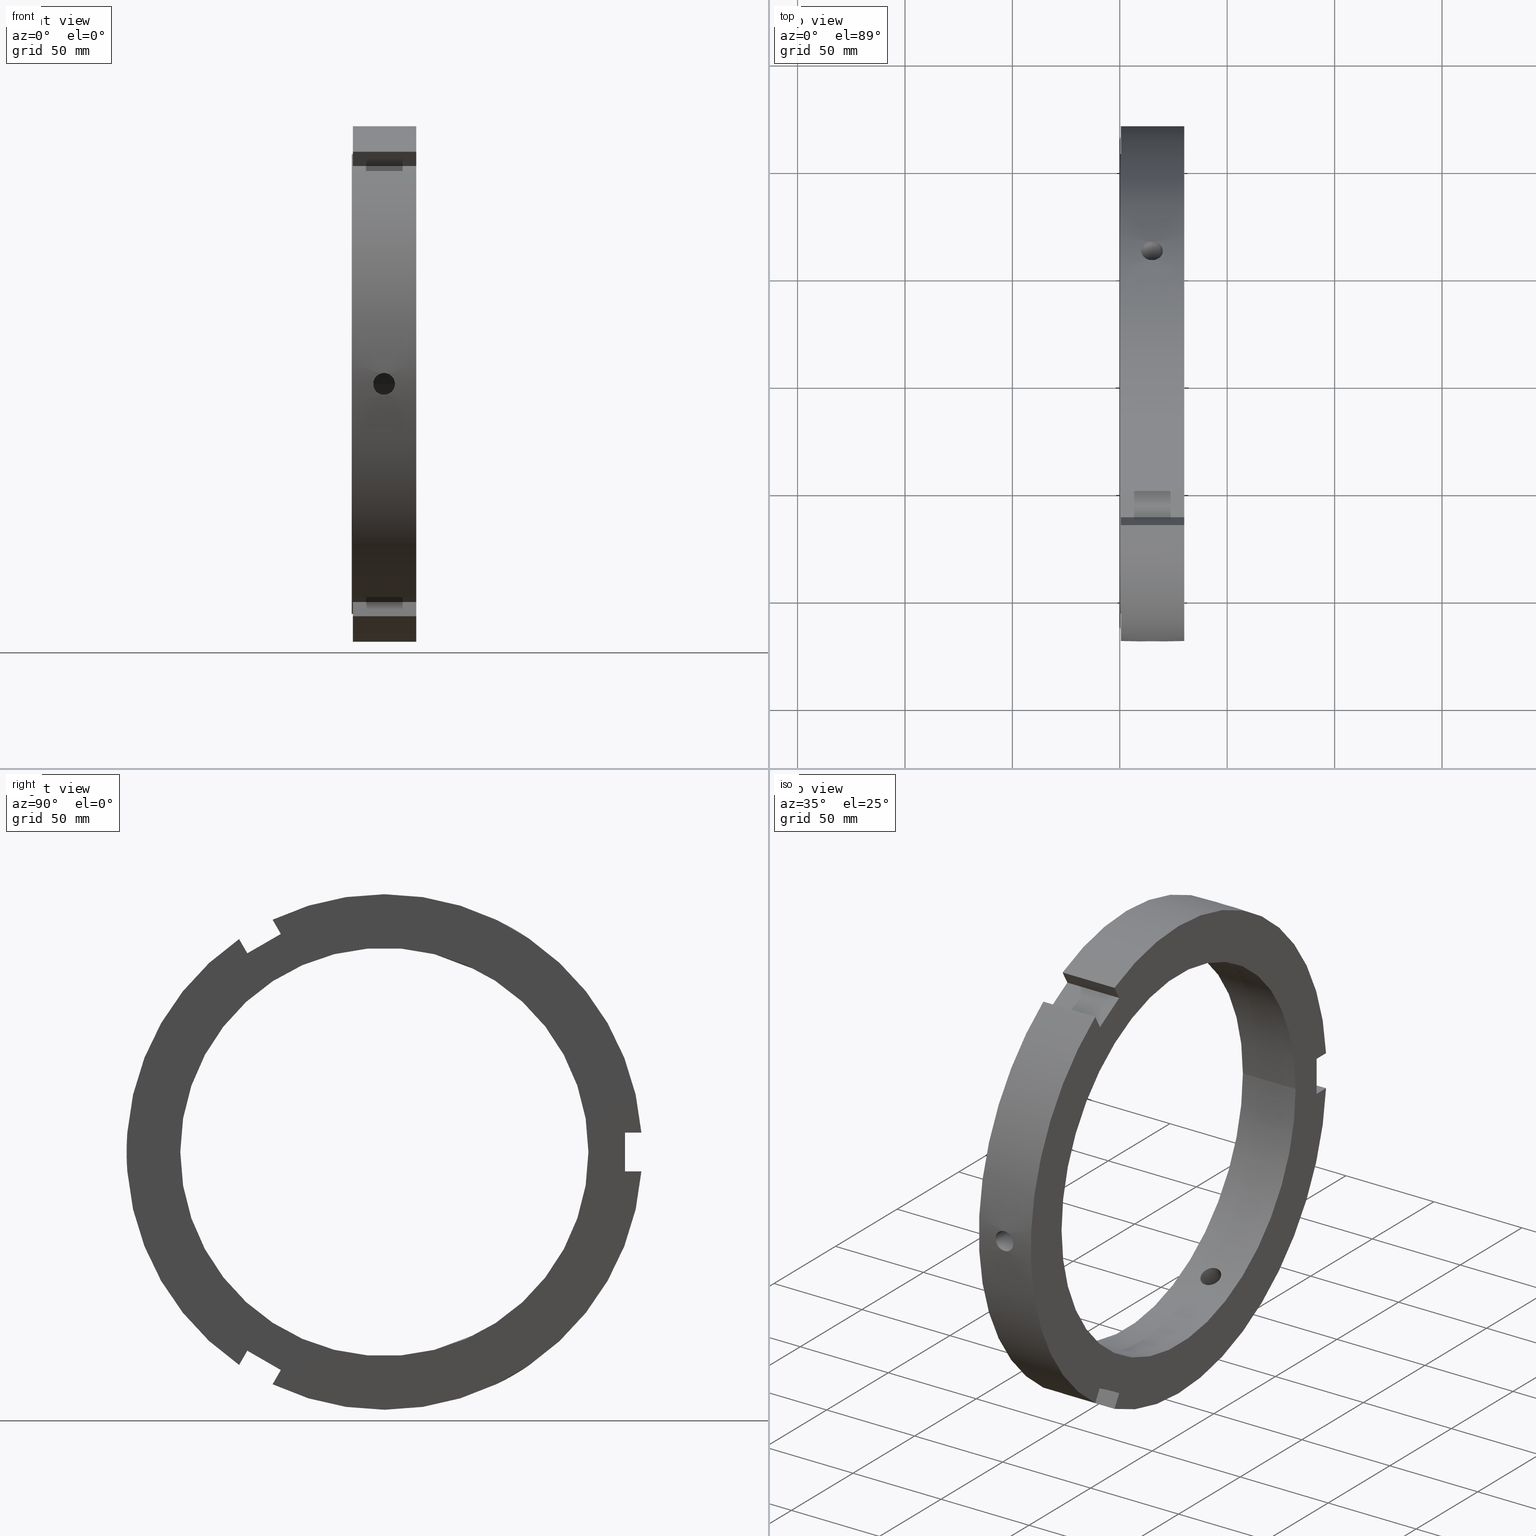
[diagram: canonical four-view strip — front | top / right | iso, engineering-drawing reading convention]
A machine part, canonical four-view strip (front | top / right | iso — engineering-drawing reading convention). The complete STEP part file that produces these views, byte-faithful:
ISO-10303-21;
HEADER;
/****************************************************************
 * Generated by software with PDElib inside                    *
 * PDElib Version v51a, created Wed 11/30/2011                  *
 * ITI Transcendata (http://www.transcendata.com/)              *
 ****************************************************************/
FILE_DESCRIPTION((''),'2;1');
FILE_NAME('C:\\Users\\sugidesign\\Documents\\Fukuda\\3Ddata\\ZMTtype\\FKD ZMT190.stp','2014-02-21T21:14:23',('sugidesign'),(''),'Autodesk Inventor LT ','Autodesk Inventor LT ','');
FILE_SCHEMA(('CONFIG_CONTROL_DESIGN'));
ENDSEC;
DATA;
#5=APPLICATION_CONTEXT('configuration controlled 3D designs of mechanical parts and assemblies');
#6=APPLICATION_PROTOCOL_DEFINITION('International Standard','ap203_configuration_controlled_3d_design_of_mechanical_parts_and_assemblies_mim_lf',2004,#5);
#7=PRODUCT_CONTEXT('',#5,'mechanical');
#8=PRODUCT('FKD ZMT190','FKD ZMT190',$,(#7));
#9=PRODUCT_RELATED_PRODUCT_CATEGORY('part',$,(#8));
#10=PRODUCT_DEFINITION_FORMATION('',$,#8);
#11=PRODUCT_DEFINITION_CONTEXT('part definition',#5,'design');
#12=PRODUCT_DEFINITION('',$,#10,#11);
#18=(NAMED_UNIT(*)PLANE_ANGLE_UNIT()SI_UNIT($,.RADIAN.));
#19=DIMENSIONAL_EXPONENTS(0.0,0.0,0.0,0.0,0.0,0.0,0.0);
#20=PLANE_ANGLE_MEASURE_WITH_UNIT(PLANE_ANGLE_MEASURE(0.0174532925),#18);
#24=(CONVERSION_BASED_UNIT('DEGREE',#20)NAMED_UNIT(#19)PLANE_ANGLE_UNIT());
#28=(NAMED_UNIT(*)SI_UNIT($,.STERADIAN.)SOLID_ANGLE_UNIT());
#32=(LENGTH_UNIT()NAMED_UNIT(*)SI_UNIT(.MILLI.,.METRE.));
#34=UNCERTAINTY_MEASURE_WITH_UNIT(LENGTH_MEASURE(0.01),#32,'DISTANCE_ACCURACY_VALUE','');
#36=(GEOMETRIC_REPRESENTATION_CONTEXT(3)GLOBAL_UNCERTAINTY_ASSIGNED_CONTEXT((#34))GLOBAL_UNIT_ASSIGNED_CONTEXT((#24,#28,#32))REPRESENTATION_CONTEXT('None','None'));
#37=AXIS2_PLACEMENT_3D('',#38,#39,#40);
#38=CARTESIAN_POINT('',(0.0,0.0,0.0));
#39=DIRECTION('',(0.0,0.0,1.0));
#40=DIRECTION('',(1.0,0.0,0.0));
#41=SHAPE_REPRESENTATION('',(#37),#36);
#42=PRODUCT_DEFINITION_SHAPE('','',#12);
#43=SHAPE_DEFINITION_REPRESENTATION(#42,#41);
#49=(NAMED_UNIT(*)PLANE_ANGLE_UNIT()SI_UNIT($,.RADIAN.));
#50=DIMENSIONAL_EXPONENTS(0.0,0.0,0.0,0.0,0.0,0.0,0.0);
#51=PLANE_ANGLE_MEASURE_WITH_UNIT(PLANE_ANGLE_MEASURE(0.0174532925),#49);
#55=(CONVERSION_BASED_UNIT('DEGREE',#51)NAMED_UNIT(#50)PLANE_ANGLE_UNIT());
#59=(NAMED_UNIT(*)SI_UNIT($,.STERADIAN.)SOLID_ANGLE_UNIT());
#63=(LENGTH_UNIT()NAMED_UNIT(*)SI_UNIT(.MILLI.,.METRE.));
#65=UNCERTAINTY_MEASURE_WITH_UNIT(LENGTH_MEASURE(0.000001),#63,'DISTANCE_ACCURACY_VALUE','');
#67=(GEOMETRIC_REPRESENTATION_CONTEXT(3)GLOBAL_UNCERTAINTY_ASSIGNED_CONTEXT((#65))GLOBAL_UNIT_ASSIGNED_CONTEXT((#55,#59,#63))REPRESENTATION_CONTEXT('','3D'));
#68=CARTESIAN_POINT('',(14.999999999999973,170.22254919897432,294.89348992159597));
#69=DIRECTION('',(0.0,-0.500000000000001,-0.866025403784438));
#70=DIRECTION('',(-1.0,0.0,0.0));
#71=AXIS2_PLACEMENT_3D('',#68,#69,#70);
#72=CYLINDRICAL_SURFACE('',#71,5.053);
#73=CARTESIAN_POINT('',(14.999999999999973,64.297718346583466,101.32030110211588));
#74=VERTEX_POINT('',#73);
#75=CARTESIAN_POINT('',(14.999999999999972,64.297718346583437,101.32030110211589));
#76=CARTESIAN_POINT('',(15.634546196469154,64.297718346583437,101.32030110211589));
#77=CARTESIAN_POINT('',(16.311337213413204,64.19064294702369,101.3885000605641));
#78=CARTESIAN_POINT('',(17.55627125986576,63.7540072333504,101.66362745900094));
#79=CARTESIAN_POINT('',(18.124420592689919,63.424306119315631,101.87030384726609));
#80=CARTESIAN_POINT('',(19.021606140913537,62.660570742025286,102.34185011733143));
#81=CARTESIAN_POINT('',(19.410472343875107,62.175582884459288,102.63812378685019));
#82=CARTESIAN_POINT('',(19.926171325682457,61.107318395240291,103.27769943239596));
#83=CARTESIAN_POINT('',(20.052999999999969,60.523892795429205,103.62075586855937));
#84=CARTESIAN_POINT('',(20.05299999999998,59.424669197668138,104.25503030142269));
#85=CARTESIAN_POINT('',(19.926169489853038,58.835691248014555,104.58847452690186));
#86=CARTESIAN_POINT('',(19.410467423717307,57.74736090354974,105.19329768180467));
#87=CARTESIAN_POINT('',(19.021600068503481,57.248146506403103,105.46492847455218));
#88=CARTESIAN_POINT('',(18.124415308295838,56.45768937357856,105.89018238590154));
#89=CARTESIAN_POINT('',(17.556268320512828,56.113757172984798,106.07220580575213));
#90=CARTESIAN_POINT('',(16.311337221939453,55.657045589043655,106.31255741875918));
#91=CARTESIAN_POINT('',(15.634546710730191,55.544414180775483,106.37113355283219));
#92=CARTESIAN_POINT('',(14.365453289269755,55.544414180775483,106.37113355283219));
#93=CARTESIAN_POINT('',(13.688662778060499,55.657045589043655,106.31255741875918));
#94=CARTESIAN_POINT('',(12.443731679487124,56.113757172984798,106.07220580575213));
#95=CARTESIAN_POINT('',(11.875584691704111,56.457689373578546,105.89018238590154));
#96=CARTESIAN_POINT('',(10.978399931496465,57.248146506403103,105.46492847455218));
#97=CARTESIAN_POINT('',(10.589532576282641,57.74736090354974,105.19329768180467));
#98=CARTESIAN_POINT('',(10.073830510146909,58.835691248014555,104.58847452690186));
#99=CARTESIAN_POINT('',(9.946999999999969,59.424669197668138,104.25503030142269));
#100=CARTESIAN_POINT('',(9.946999999999978,60.523892795429205,103.62075586855937));
#101=CARTESIAN_POINT('',(10.07382867431749,61.107318395240284,103.27769943239596));
#102=CARTESIAN_POINT('',(10.589527656124837,62.175582884459281,102.63812378685019));
#103=CARTESIAN_POINT('',(10.97839385908641,62.660570742025286,102.34185011733143));
#104=CARTESIAN_POINT('',(11.875579407310026,63.424306119315631,101.87030384726609));
#105=CARTESIAN_POINT('',(12.443728740134185,63.7540072333504,101.66362745900094));
#106=CARTESIAN_POINT('',(13.688662786586743,64.19064294702369,101.3885000605641));
#107=CARTESIAN_POINT('',(14.365453803530787,64.297718346583437,101.32030110211589));
#108=CARTESIAN_POINT('',(14.999999999999972,64.297718346583437,101.32030110211589));
#109=B_SPLINE_CURVE_WITH_KNOTS('',3,(#75,#76,#77,#78,#79,#80,#81,#82,#83,#84,#85,#86,#87,#88,#89,#90,#91,#92,#93,#94,#95,#96,#97,#98,#99,#100,#101,#102,#103,#104,#105,#106,#107,#108),.UNSPECIFIED.,.T.,.U.,(4,2,2,2,2,2,2,2,2,2,2,2,2,2,2,2,4),(0.0,0.190363858940755,0.380727717881511,0.571090869717613,0.761454021553716,0.951818714332764,1.142183407111813,1.332547420330878,1.522911433549944,1.713275446769009,1.903639459988074,2.094004152767123,2.284368845546171,2.474731997382274,2.665095149218376,2.855459008159132,3.045822867099887),.UNSPECIFIED.);
#110=EDGE_CURVE('',#74,#74,#109,.T.);
#111=ORIENTED_EDGE('',*,*,#110,.F.);
#112=EDGE_LOOP('',(#111));
#113=FACE_OUTER_BOUND('',#112,.T.);
#114=CARTESIAN_POINT('',(14.999999999999973,51.783860698352228,79.645663856695009));
#115=VERTEX_POINT('',#114);
#116=CARTESIAN_POINT('',(14.999999999999973,51.783860698352193,79.645663856695023));
#117=CARTESIAN_POINT('',(14.365405922573267,51.783860698352193,79.645663856695023));
#118=CARTESIAN_POINT('',(13.688594093724504,51.677498422244099,79.715135366105599));
#119=CARTESIAN_POINT('',(12.443672412465872,51.243481062656656,79.994826695966907));
#120=CARTESIAN_POINT('',(11.87555248484988,50.915648892237982,80.2047267529273));
#121=CARTESIAN_POINT('',(10.978417487118989,50.155447053533173,80.682294365374048));
#122=CARTESIAN_POINT('',(10.589558879847743,49.672339504558593,80.981765227640324));
#123=CARTESIAN_POINT('',(10.073846861760039,48.606687451202106,81.62583871703643));
#124=CARTESIAN_POINT('',(9.946999999999978,48.023953164043377,81.970132531836015));
#125=CARTESIAN_POINT('',(9.946999999999971,46.924605209366476,82.604383304642283));
#126=CARTESIAN_POINT('',(10.073849792477727,46.334855971479286,82.936534437479366));
#127=CARTESIAN_POINT('',(10.589566734009567,45.243854692328931,83.536705914099358));
#128=CARTESIAN_POINT('',(10.978427180363777,44.74277493882262,83.805045150084567));
#129=CARTESIAN_POINT('',(11.875560918021769,43.948813577077857,84.224125313041199));
#130=CARTESIAN_POINT('',(12.443677101460217,43.602999628941603,84.402873625882989));
#131=CARTESIAN_POINT('',(13.688594075909243,43.14361175968827,84.638616584627243));
#132=CARTESIAN_POINT('',(14.365405097780597,43.030226370677866,84.695924450283997));
#133=CARTESIAN_POINT('',(15.63459490221935,43.030226370677866,84.695924450283997));
#134=CARTESIAN_POINT('',(16.311405924090703,43.14361175968827,84.638616584627243));
#135=CARTESIAN_POINT('',(17.556322898539729,43.602999628941603,84.402873625882989));
#136=CARTESIAN_POINT('',(18.124439081978178,43.948813577077857,84.224125313041199));
#137=CARTESIAN_POINT('',(19.02157281963617,44.742774938822627,83.805045150084567));
#138=CARTESIAN_POINT('',(19.410433265990381,45.243854692328938,83.536705914099343));
#139=CARTESIAN_POINT('',(19.926150207522223,46.3348559714793,82.936534437479352));
#140=CARTESIAN_POINT('',(20.052999999999976,46.924605209366476,82.604383304642283));
#141=CARTESIAN_POINT('',(20.052999999999976,48.023953164043377,81.970132531836015));
#142=CARTESIAN_POINT('',(19.926153138239911,48.606687451202106,81.62583871703643));
#143=CARTESIAN_POINT('',(19.410441120152203,49.672339504558593,80.981765227640324));
#144=CARTESIAN_POINT('',(19.021582512880961,50.155447053533194,80.682294365374048));
#145=CARTESIAN_POINT('',(18.124447515150063,50.915648892238003,80.204726752927314));
#146=CARTESIAN_POINT('',(17.556327587534078,51.243481062656656,79.994826695966907));
#147=CARTESIAN_POINT('',(16.311405906275446,51.677498422244099,79.715135366105599));
#148=CARTESIAN_POINT('',(15.634594077426682,51.783860698352193,79.645663856695023));
#149=CARTESIAN_POINT('',(14.999999999999975,51.783860698352193,79.645663856695023));
#150=B_SPLINE_CURVE_WITH_KNOTS('',3,(#116,#117,#118,#119,#120,#121,#122,#123,#124,#125,#126,#127,#128,#129,#130,#131,#132,#133,#134,#135,#136,#137,#138,#139,#140,#141,#142,#143,#144,#145,#146,#147,#148,#149),.UNSPECIFIED.,.T.,.U.,(4,2,2,2,2,2,2,2,2,2,2,2,2,2,2,2,4),(0.0,0.190378223228012,0.380756446456025,0.571133522306524,0.761510598157024,0.951890133730661,1.142269669304298,1.33264813997011,1.523026610635923,1.713405081301736,1.903783551967548,2.094163087541185,2.284542623114822,2.474919698965322,2.665296774815822,2.855674998043835,3.046053221271847),.UNSPECIFIED.);
#151=EDGE_CURVE('',#115,#115,#150,.T.);
#152=ORIENTED_EDGE('',*,*,#151,.F.);
#153=EDGE_LOOP('',(#152));
#154=FACE_BOUND('',#153,.T.);
#155=ADVANCED_FACE('',(#113,#154),#72,.F.);
#156=CARTESIAN_POINT('',(14.999999999999973,170.27397908326535,-294.8637968640561));
#157=DIRECTION('',(0.0,-0.5,0.866025403784439));
#158=DIRECTION('',(-1.0,0.0,0.0));
#159=AXIS2_PLACEMENT_3D('',#156,#157,#158);
#160=CYLINDRICAL_SURFACE('',#159,5.053);
#161=CARTESIAN_POINT('',(14.999999999999973,55.597095500229102,-106.34360804457599));
#162=VERTEX_POINT('',#161);
#163=CARTESIAN_POINT('',(14.999999999999973,55.597095500229095,-106.34360804457599));
#164=CARTESIAN_POINT('',(15.634546196469161,55.597095500229095,-106.34360804457599));
#165=CARTESIAN_POINT('',(16.311337213413214,55.709695230536759,-106.28497750766095));
#166=CARTESIAN_POINT('',(17.556271259865774,56.166280403696824,-106.04440358663874));
#167=CARTESIAN_POINT('',(18.124420592689923,56.5101179633143,-105.8622122403612));
#168=CARTESIAN_POINT('',(19.021606140913534,57.300356700895847,-105.43657113689153));
#169=CARTESIAN_POINT('',(19.410472343875121,57.799431153954515,-105.16469616647177));
#170=CARTESIAN_POINT('',(19.926171325682464,58.887452155248504,-104.5593398036202));
#171=CARTESIAN_POINT('',(20.052999999999969,59.476260543803292,-104.22560663104733));
#172=CARTESIAN_POINT('',(20.052999999999976,60.575170114514435,-103.59078828737861));
#173=CARTESIAN_POINT('',(19.926169489853041,61.158430259351412,-103.24744053344929));
#174=CARTESIAN_POINT('',(19.410467423717293,62.226387648526689,-102.60733038488468));
#175=CARTESIAN_POINT('',(19.021600068503485,62.711234014069468,-102.31081343139454));
#176=CARTESIAN_POINT('',(18.124415308295838,63.474743270768982,-101.83888442944055));
#177=CARTESIAN_POINT('',(17.556268320512832,63.804346276740176,-101.63204211647215));
#178=CARTESIAN_POINT('',(16.311337221939457,64.240852671415439,-101.35669408908004));
#179=CARTESIAN_POINT('',(15.634546710730191,64.347896795712217,-101.28844049529228));
#180=CARTESIAN_POINT('',(14.365453289269755,64.347896795712217,-101.28844049529228));
#181=CARTESIAN_POINT('',(13.688662778060493,64.240852671415439,-101.35669408908004));
#182=CARTESIAN_POINT('',(12.443731679487124,63.804346276740176,-101.63204211647215));
#183=CARTESIAN_POINT('',(11.875584691704111,63.47474327076899,-101.83888442944055));
#184=CARTESIAN_POINT('',(10.978399931496464,62.711234014069468,-102.31081343139454));
#185=CARTESIAN_POINT('',(10.589532576282652,62.226387648526689,-102.60733038488468));
#186=CARTESIAN_POINT('',(10.073830510146905,61.158430259351412,-103.24744053344929));
#187=CARTESIAN_POINT('',(9.946999999999971,60.575170114514435,-103.59078828737861));
#188=CARTESIAN_POINT('',(9.946999999999978,59.476260543803292,-104.22560663104736));
#189=CARTESIAN_POINT('',(10.073828674317484,58.887452155248489,-104.5593398036202));
#190=CARTESIAN_POINT('',(10.589527656124819,57.799431153954515,-105.16469616647177));
#191=CARTESIAN_POINT('',(10.978393859086415,57.300356700895861,-105.43657113689153));
#192=CARTESIAN_POINT('',(11.875579407310024,56.5101179633143,-105.8622122403612));
#193=CARTESIAN_POINT('',(12.443728740134173,56.166280403696824,-106.04440358663874));
#194=CARTESIAN_POINT('',(13.688662786586733,55.709695230536759,-106.28497750766095));
#195=CARTESIAN_POINT('',(14.365453803530784,55.597095500229095,-106.34360804457599));
#196=CARTESIAN_POINT('',(14.999999999999972,55.597095500229095,-106.34360804457599));
#197=B_SPLINE_CURVE_WITH_KNOTS('',3,(#163,#164,#165,#166,#167,#168,#169,#170,#171,#172,#173,#174,#175,#176,#177,#178,#179,#180,#181,#182,#183,#184,#185,#186,#187,#188,#189,#190,#191,#192,#193,#194,#195,#196),.UNSPECIFIED.,.T.,.U.,(4,2,2,2,2,2,2,2,2,2,2,2,2,2,2,2,4),(0.0,0.190363858940756,0.380727717881513,0.571090869717614,0.761454021553715,0.951818714332764,1.142183407111813,1.332547420330878,1.522911433549943,1.713275446769008,1.903639459988073,2.094004152767122,2.284368845546171,2.474731997382272,2.665095149218374,2.85545900815913,3.045822867099886),.UNSPECIFIED.);
#198=EDGE_CURVE('',#162,#162,#197,.T.);
#199=ORIENTED_EDGE('',*,*,#198,.F.);
#200=EDGE_LOOP('',(#199));
#201=FACE_OUTER_BOUND('',#200,.T.);
#202=CARTESIAN_POINT('',(14.999999999999973,43.083237851997879,-84.668970799155105));
#203=VERTEX_POINT('',#202);
#204=CARTESIAN_POINT('',(14.999999999999975,43.083237851997865,-84.66897079915509));
#205=CARTESIAN_POINT('',(14.365405922573265,43.083237851997865,-84.66897079915509));
#206=CARTESIAN_POINT('',(13.688594093724486,43.196583082040725,-84.611594120746432));
#207=CARTESIAN_POINT('',(12.443672412465855,43.6558115587126,-84.375569726590925));
#208=CARTESIAN_POINT('',(11.87555248484988,44.001506425505461,-84.196608767310749));
#209=CARTESIAN_POINT('',(10.978417487118993,44.795193029261426,-83.777038469212101));
#210=CARTESIAN_POINT('',(10.589558879847729,45.296096178164554,-83.508390490173241));
#211=CARTESIAN_POINT('',(10.073846861760032,46.386706208563908,-82.907545485069534));
#212=CARTESIAN_POINT('',(9.946999999999974,46.976240542125574,-82.575029696133669));
#213=CARTESIAN_POINT('',(9.946999999999973,48.075191801084181,-81.940091826188137));
#214=CARTESIAN_POINT('',(10.073849792477734,48.657717738960443,-81.595429570733828));
#215=CARTESIAN_POINT('',(10.589566734009594,49.722982123915358,-80.950680485738303));
#216=CARTESIAN_POINT('',(10.978427180363774,50.205910595863834,-80.650902307872428));
#217=CARTESIAN_POINT('',(11.875560918021771,50.96582534407878,-80.172851680456489));
#218=CARTESIAN_POINT('',(12.443677101460233,51.293532897951465,-79.96274217280839));
#219=CARTESIAN_POINT('',(13.688594075909258,51.727386223613948,-79.682772087216719));
#220=CARTESIAN_POINT('',(14.365405097780597,51.833708985614592,-79.613231392744098));
#221=CARTESIAN_POINT('',(15.63459490221935,51.833708985614592,-79.613231392744098));
#222=CARTESIAN_POINT('',(16.311405924090685,51.727386223613948,-79.682772087216719));
#223=CARTESIAN_POINT('',(17.556322898539712,51.293532897951465,-79.96274217280839));
#224=CARTESIAN_POINT('',(18.124439081978178,50.96582534407878,-80.172851680456489));
#225=CARTESIAN_POINT('',(19.021572819636173,50.205910595863834,-80.650902307872428));
#226=CARTESIAN_POINT('',(19.410433265990349,49.722982123915351,-80.950680485738303));
#227=CARTESIAN_POINT('',(19.926150207522213,48.657717738960436,-81.595429570733828));
#228=CARTESIAN_POINT('',(20.052999999999976,48.075191801084181,-81.940091826188137));
#229=CARTESIAN_POINT('',(20.052999999999976,46.976240542125574,-82.575029696133669));
#230=CARTESIAN_POINT('',(19.926153138239926,46.386706208563908,-82.907545485069519));
#231=CARTESIAN_POINT('',(19.410441120152232,45.296096178164554,-83.508390490173227));
#232=CARTESIAN_POINT('',(19.021582512880954,44.795193029261426,-83.777038469212101));
#233=CARTESIAN_POINT('',(18.124447515150067,44.001506425505461,-84.196608767310749));
#234=CARTESIAN_POINT('',(17.556327587534085,43.6558115587126,-84.375569726590939));
#235=CARTESIAN_POINT('',(16.311405906275457,43.196583082040725,-84.611594120746446));
#236=CARTESIAN_POINT('',(15.63459407742668,43.083237851997865,-84.66897079915509));
#237=CARTESIAN_POINT('',(14.999999999999972,43.083237851997865,-84.66897079915509));
#238=B_SPLINE_CURVE_WITH_KNOTS('',3,(#204,#205,#206,#207,#208,#209,#210,#211,#212,#213,#214,#215,#216,#217,#218,#219,#220,#221,#222,#223,#224,#225,#226,#227,#228,#229,#230,#231,#232,#233,#234,#235,#236,#237),.UNSPECIFIED.,.T.,.U.,(4,2,2,2,2,2,2,2,2,2,2,2,2,2,2,2,4),(0.0,0.190378223228013,0.380756446456026,0.571133522306526,0.761510598157025,0.951890133730662,1.1422696693043,1.332648139970112,1.523026610635924,1.713405081301737,1.903783551967549,2.094163087541186,2.284542623114823,2.474919698965323,2.665296774815822,2.855674998043836,3.046053221271849),.UNSPECIFIED.);
#239=EDGE_CURVE('',#203,#203,#238,.T.);
#240=ORIENTED_EDGE('',*,*,#239,.F.);
#241=EDGE_LOOP('',(#240));
#242=FACE_BOUND('',#241,.T.);
#243=ADVANCED_FACE('',(#201,#242),#160,.F.);
#244=CARTESIAN_POINT('',(14.999999999999973,-340.49652828223952,-0.029693057539943));
#245=DIRECTION('',(0.0,1.0,0.0));
#246=DIRECTION('',(-1.0,0.0,0.0));
#247=AXIS2_PLACEMENT_3D('',#244,#245,#246);
#248=CYLINDRICAL_SURFACE('',#247,5.053);
#249=CARTESIAN_POINT('',(14.999999999999973,-119.89481384681254,5.023306942460057));
#250=VERTEX_POINT('',#249);
#251=CARTESIAN_POINT('',(14.999999999999973,-119.89481384681254,5.023306942460057));
#252=CARTESIAN_POINT('',(15.634546196469161,-119.89481384681254,5.023306942460057));
#253=CARTESIAN_POINT('',(16.311337213413207,-119.90033817756046,4.896477447096847));
#254=CARTESIAN_POINT('',(17.556271259865767,-119.92028763704724,4.38077612763781));
#255=CARTESIAN_POINT('',(18.124420592689919,-119.9344240826299,3.991908393095058));
#256=CARTESIAN_POINT('',(19.021606140913534,-119.96092744292112,3.094721019560044));
#257=CARTESIAN_POINT('',(19.410472343875124,-119.97501403841376,2.526572379621545));
#258=CARTESIAN_POINT('',(19.926171325682464,-119.99477055048874,1.281640371224193));
#259=CARTESIAN_POINT('',(20.052999999999976,-120.00015333923247,0.604850762487925));
#260=CARTESIAN_POINT('',(20.052999999999976,-119.99983931218253,-0.664242014044146));
#261=CARTESIAN_POINT('',(19.926169489853049,-119.99412150736595,-1.341033993452599));
#262=CARTESIAN_POINT('',(19.410467423717307,-119.9737485520764,-2.585967296920007));
#263=CARTESIAN_POINT('',(19.021600068503481,-119.95938052047254,-3.154115043157699));
#264=CARTESIAN_POINT('',(18.124415308295834,-119.93243264434751,-4.051297956461044));
#265=CARTESIAN_POINT('',(17.556268320512821,-119.91810344972495,-4.440163689279999));
#266=CARTESIAN_POINT('',(16.311337221939446,-119.89789826045907,-4.955863329679188));
#267=CARTESIAN_POINT('',(15.634546710730191,-119.89231097648771,-5.082693057539943));
#268=CARTESIAN_POINT('',(14.365453289269759,-119.89231097648771,-5.082693057539943));
#269=CARTESIAN_POINT('',(13.688662778060497,-119.89789826045907,-4.955863329679187));
#270=CARTESIAN_POINT('',(12.443731679487124,-119.91810344972495,-4.440163689279999));
#271=CARTESIAN_POINT('',(11.875584691704116,-119.93243264434751,-4.051297956461044));
#272=CARTESIAN_POINT('',(10.978399931496465,-119.95938052047254,-3.154115043157701));
#273=CARTESIAN_POINT('',(10.589532576282643,-119.9737485520764,-2.585967296920008));
#274=CARTESIAN_POINT('',(10.073830510146902,-119.99412150736595,-1.341033993452601));
#275=CARTESIAN_POINT('',(9.946999999999974,-119.99983931218253,-0.664242014044148));
#276=CARTESIAN_POINT('',(9.946999999999974,-120.00015333923247,0.604850762487922));
#277=CARTESIAN_POINT('',(10.073828674317484,-119.99477055048877,1.281640371224191));
#278=CARTESIAN_POINT('',(10.589527656124822,-119.97501403841378,2.526572379621542));
#279=CARTESIAN_POINT('',(10.978393859086415,-119.96092744292113,3.094721019560042));
#280=CARTESIAN_POINT('',(11.875579407310026,-119.9344240826299,3.991908393095057));
#281=CARTESIAN_POINT('',(12.443728740134176,-119.92028763704724,4.38077612763781));
#282=CARTESIAN_POINT('',(13.688662786586738,-119.90033817756046,4.896477447096847));
#283=CARTESIAN_POINT('',(14.365453803530785,-119.89481384681254,5.023306942460055));
#284=CARTESIAN_POINT('',(14.999999999999973,-119.89481384681254,5.023306942460055));
#285=B_SPLINE_CURVE_WITH_KNOTS('',3,(#251,#252,#253,#254,#255,#256,#257,#258,#259,#260,#261,#262,#263,#264,#265,#266,#267,#268,#269,#270,#271,#272,#273,#274,#275,#276,#277,#278,#279,#280,#281,#282,#283,#284),.UNSPECIFIED.,.T.,.U.,(4,2,2,2,2,2,2,2,2,2,2,2,2,2,2,2,4),(0.0,0.190363858940757,0.380727717881513,0.571090869717615,0.761454021553716,0.951818714332765,1.142183407111815,1.332547420330879,1.522911433549944,1.713275446769009,1.903639459988073,2.094004152767123,2.284368845546172,2.474731997382273,2.665095149218375,2.855459008159131,3.045822867099888),.UNSPECIFIED.);
#286=EDGE_CURVE('',#250,#250,#285,.T.);
#287=ORIENTED_EDGE('',*,*,#286,.F.);
#288=EDGE_LOOP('',(#287));
#289=FACE_OUTER_BOUND('',#288,.T.);
#290=CARTESIAN_POINT('',(14.999999999999973,-94.867098550350079,5.023306942460057));
#291=VERTEX_POINT('',#290);
#292=CARTESIAN_POINT('',(14.999999999999973,-94.867098550350079,5.023306942460057));
#293=CARTESIAN_POINT('',(14.365405922573263,-94.867098550350079,5.023306942460057));
#294=CARTESIAN_POINT('',(13.688594093724502,-94.874081504284845,4.896458754640831));
#295=CARTESIAN_POINT('',(12.443672412465867,-94.89929262136927,4.380743030624009));
#296=CARTESIAN_POINT('',(11.875552484849884,-94.917155317743436,3.99188201438343));
#297=CARTESIAN_POINT('',(10.978417487118985,-94.950640082794564,3.094744103838053));
#298=CARTESIAN_POINT('',(10.589558879847729,-94.968435682723111,2.526625262532878));
#299=CARTESIAN_POINT('',(10.073846861760028,-94.993393659765985,1.281706768033065));
#300=CARTESIAN_POINT('',(9.946999999999973,-95.000193706168943,0.604897164297602));
#301=CARTESIAN_POINT('',(9.946999999999974,-94.999797010450635,-0.66429147845421));
#302=CARTESIAN_POINT('',(10.073849792477729,-94.992573710439729,-1.341104866745554));
#303=CARTESIAN_POINT('',(10.589566734009582,-94.966836816244268,-2.586025428361067));
#304=CARTESIAN_POINT('',(10.978427180363781,-94.948685534686433,-3.154142842212191));
#305=CARTESIAN_POINT('',(11.875560918021772,-94.914638921156609,-4.051273632584762));
#306=CARTESIAN_POINT('',(12.443677101460224,-94.896532526893068,-4.440131453074637));
#307=CARTESIAN_POINT('',(13.688594075909251,-94.870997983302217,-4.955844497410546));
#308=CARTESIAN_POINT('',(14.365405097780597,-94.863935356292444,-5.082693057539942));
#309=CARTESIAN_POINT('',(15.63459490221935,-94.863935356292458,-5.082693057539943));
#310=CARTESIAN_POINT('',(16.311405924090693,-94.870997983302217,-4.955844497410548));
#311=CARTESIAN_POINT('',(17.556322898539722,-94.896532526893068,-4.440131453074639));
#312=CARTESIAN_POINT('',(18.124439081978174,-94.914638921156609,-4.051273632584762));
#313=CARTESIAN_POINT('',(19.021572819636166,-94.948685534686433,-3.154142842212191));
#314=CARTESIAN_POINT('',(19.410433265990367,-94.966836816244268,-2.586025428361067));
#315=CARTESIAN_POINT('',(19.926150207522216,-94.992573710439729,-1.341104866745554));
#316=CARTESIAN_POINT('',(20.052999999999976,-94.999797010450635,-0.66429147845421));
#317=CARTESIAN_POINT('',(20.052999999999976,-95.000193706168943,0.604897164297602));
#318=CARTESIAN_POINT('',(19.926153138239918,-94.993393659766028,1.281706768033065));
#319=CARTESIAN_POINT('',(19.410441120152218,-94.96843568272314,2.526625262532879));
#320=CARTESIAN_POINT('',(19.021582512880958,-94.950640082794564,3.094744103838052));
#321=CARTESIAN_POINT('',(18.124447515150063,-94.917155317743436,3.991882014383429));
#322=CARTESIAN_POINT('',(17.556327587534081,-94.89929262136927,4.380743030624009));
#323=CARTESIAN_POINT('',(16.311405906275446,-94.874081504284845,4.896458754640831));
#324=CARTESIAN_POINT('',(15.634594077426684,-94.867098550350079,5.023306942460055));
#325=CARTESIAN_POINT('',(14.999999999999973,-94.867098550350079,5.023306942460055));
#326=B_SPLINE_CURVE_WITH_KNOTS('',3,(#292,#293,#294,#295,#296,#297,#298,#299,#300,#301,#302,#303,#304,#305,#306,#307,#308,#309,#310,#311,#312,#313,#314,#315,#316,#317,#318,#319,#320,#321,#322,#323,#324,#325),.UNSPECIFIED.,.T.,.U.,(4,2,2,2,2,2,2,2,2,2,2,2,2,2,2,2,4),(0.0,0.190378223228013,0.380756446456026,0.571133522306526,0.761510598157026,0.951890133730663,1.1422696693043,1.332648139970112,1.523026610635925,1.713405081301738,1.903783551967551,2.094163087541187,2.284542623114824,2.474919698965324,2.665296774815825,2.855674998043837,3.046053221271851),.UNSPECIFIED.);
#327=EDGE_CURVE('',#291,#291,#326,.T.);
#328=ORIENTED_EDGE('',*,*,#327,.F.);
#329=EDGE_LOOP('',(#328));
#330=FACE_BOUND('',#329,.T.);
#331=ADVANCED_FACE('',(#289,#330),#248,.F.);
#332=CARTESIAN_POINT('',(29.999999999999972,-67.625240659597395,-99.130352696495237));
#333=DIRECTION('',(0.0,-0.866025403784438,0.500000000000001));
#334=DIRECTION('',(0.0,0.500000000000001,0.866025403784438));
#335=AXIS2_PLACEMENT_3D('',#332,#333,#334);
#336=PLANE('',#335);
#337=CARTESIAN_POINT('',(0.499999999999972,-63.794228634059991,-92.494845223857112));
#338=VERTEX_POINT('',#337);
#339=CARTESIAN_POINT('',(0.499999999999972,-67.625240659597395,-99.130352696495237));
#340=VERTEX_POINT('',#339);
#341=CARTESIAN_POINT('',(0.499999999999969,-63.794228634060019,-92.494845223857112));
#342=DIRECTION('',(0.0,-0.5,-0.866025403784439));
#343=VECTOR('',#342,7.662024051074787);
#344=LINE('',#341,#343);
#345=EDGE_CURVE('',#338,#340,#344,.T.);
#346=ORIENTED_EDGE('',*,*,#345,.F.);
#347=CARTESIAN_POINT('',(29.999999999999972,-63.794228634059991,-92.494845223857112));
#348=VERTEX_POINT('',#347);
#349=CARTESIAN_POINT('',(29.999999999999972,-63.794228634059991,-92.494845223857112));
#350=DIRECTION('',(-1.0,0.0,0.0));
#351=VECTOR('',#350,29.5);
#352=LINE('',#349,#351);
#353=EDGE_CURVE('',#348,#338,#352,.T.);
#354=ORIENTED_EDGE('',*,*,#353,.F.);
#355=CARTESIAN_POINT('',(29.999999999999972,-67.625240659597395,-99.130352696495237));
#356=VERTEX_POINT('',#355);
#357=CARTESIAN_POINT('',(29.999999999999972,-67.625240659597409,-99.130352696495237));
#358=DIRECTION('',(0.0,0.5,0.866025403784438));
#359=VECTOR('',#358,7.66202405107479);
#360=LINE('',#357,#359);
#361=EDGE_CURVE('',#356,#348,#360,.T.);
#362=ORIENTED_EDGE('',*,*,#361,.F.);
#363=CARTESIAN_POINT('',(0.499999999999972,-67.625240659597381,-99.130352696495237));
#364=DIRECTION('',(1.0,0.0,0.0));
#365=VECTOR('',#364,29.5);
#366=LINE('',#363,#365);
#367=EDGE_CURVE('',#340,#356,#366,.T.);
#368=ORIENTED_EDGE('',*,*,#367,.F.);
#369=EDGE_LOOP('',(#346,#354,#362,#368));
#370=FACE_OUTER_BOUND('',#369,.T.);
#371=ADVANCED_FACE('',(#370),#336,.F.);
#372=CARTESIAN_POINT('',(29.999999999999972,-63.794228634059991,-92.494845223857112));
#373=DIRECTION('',(0.0,0.500000000000001,0.866025403784438));
#374=DIRECTION('',(0.0,0.866025403784438,-0.5));
#375=AXIS2_PLACEMENT_3D('',#372,#373,#374);
#376=PLANE('',#375);
#377=CARTESIAN_POINT('',(0.499999999999972,-48.205771365940073,-101.49484522385708));
#378=VERTEX_POINT('',#377);
#379=CARTESIAN_POINT('',(0.499999999999969,-48.205771365940109,-101.49484522385713));
#380=DIRECTION('',(0.0,-0.866025403784439,0.5));
#381=VECTOR('',#380,18.000000000000018);
#382=LINE('',#379,#381);
#383=EDGE_CURVE('',#378,#338,#382,.T.);
#384=ORIENTED_EDGE('',*,*,#383,.F.);
#385=CARTESIAN_POINT('',(29.999999999999972,-48.205771365940073,-101.49484522385708));
#386=VERTEX_POINT('',#385);
#387=CARTESIAN_POINT('',(29.999999999999972,-48.205771365940073,-101.49484522385708));
#388=DIRECTION('',(-1.0,0.0,0.0));
#389=VECTOR('',#388,29.5);
#390=LINE('',#387,#389);
#391=EDGE_CURVE('',#386,#378,#390,.T.);
#392=ORIENTED_EDGE('',*,*,#391,.F.);
#393=CARTESIAN_POINT('',(29.999999999999972,-63.794228634060026,-92.494845223857126));
#394=DIRECTION('',(0.0,0.866025403784439,-0.5));
#395=VECTOR('',#394,18.000000000000018);
#396=LINE('',#393,#395);
#397=EDGE_CURVE('',#348,#386,#396,.T.);
#398=ORIENTED_EDGE('',*,*,#397,.F.);
#399=ORIENTED_EDGE('',*,*,#353,.T.);
#400=EDGE_LOOP('',(#384,#392,#398,#399));
#401=FACE_OUTER_BOUND('',#400,.T.);
#402=ADVANCED_FACE('',(#401),#376,.F.);
#403=CARTESIAN_POINT('',(29.999999999999972,-48.205771365940073,-101.49484522385708));
#404=DIRECTION('',(0.0,0.866025403784438,-0.5));
#405=DIRECTION('',(0.0,-0.5,-0.866025403784438));
#406=AXIS2_PLACEMENT_3D('',#403,#404,#405);
#407=PLANE('',#406);
#408=CARTESIAN_POINT('',(0.499999999999972,-52.036783391477499,-108.13035269649525));
#409=VERTEX_POINT('',#408);
#410=CARTESIAN_POINT('',(0.499999999999969,-52.036783391477499,-108.13035269649527));
#411=DIRECTION('',(0.0,0.5,0.866025403784439));
#412=VECTOR('',#411,7.662024051074854);
#413=LINE('',#410,#412);
#414=EDGE_CURVE('',#409,#378,#413,.T.);
#415=ORIENTED_EDGE('',*,*,#414,.F.);
#416=CARTESIAN_POINT('',(29.999999999999972,-52.036783391477499,-108.13035269649525));
#417=VERTEX_POINT('',#416);
#418=CARTESIAN_POINT('',(29.999999999999972,-52.036783391477485,-108.13035269649525));
#419=DIRECTION('',(-1.0,0.0,0.0));
#420=VECTOR('',#419,29.5);
#421=LINE('',#418,#420);
#422=EDGE_CURVE('',#417,#409,#421,.T.);
#423=ORIENTED_EDGE('',*,*,#422,.F.);
#424=CARTESIAN_POINT('',(29.999999999999972,-48.20577136594008,-101.49484522385711));
#425=DIRECTION('',(0.0,-0.500000000000001,-0.866025403784438));
#426=VECTOR('',#425,7.662024051074826);
#427=LINE('',#424,#426);
#428=EDGE_CURVE('',#386,#417,#427,.T.);
#429=ORIENTED_EDGE('',*,*,#428,.F.);
#430=ORIENTED_EDGE('',*,*,#391,.T.);
#431=EDGE_LOOP('',(#415,#423,#429,#430));
#432=FACE_OUTER_BOUND('',#431,.T.);
#433=ADVANCED_FACE('',(#432),#407,.F.);
#434=CARTESIAN_POINT('',(29.999999999999972,-52.036783391477435,108.13035269649527));
#435=DIRECTION('',(0.0,0.866025403784439,0.5));
#436=DIRECTION('',(0.0,0.5,-0.866025403784439));
#437=AXIS2_PLACEMENT_3D('',#434,#435,#436);
#438=PLANE('',#437);
#439=CARTESIAN_POINT('',(0.499999999999972,-48.205771365940038,101.49484522385713));
#440=VERTEX_POINT('',#439);
#441=CARTESIAN_POINT('',(0.499999999999972,-52.036783391477435,108.13035269649527));
#442=VERTEX_POINT('',#441);
#443=CARTESIAN_POINT('',(0.499999999999969,-48.205771365940038,101.49484522385713));
#444=DIRECTION('',(0.0,-0.5,0.866025403784439));
#445=VECTOR('',#444,7.662024051074822);
#446=LINE('',#443,#445);
#447=EDGE_CURVE('',#440,#442,#446,.T.);
#448=ORIENTED_EDGE('',*,*,#447,.F.);
#449=CARTESIAN_POINT('',(29.999999999999972,-48.205771365940038,101.49484522385713));
#450=VERTEX_POINT('',#449);
#451=CARTESIAN_POINT('',(29.999999999999972,-48.205771365940038,101.49484522385713));
#452=DIRECTION('',(-1.0,0.0,0.0));
#453=VECTOR('',#452,29.5);
#454=LINE('',#451,#453);
#455=EDGE_CURVE('',#450,#440,#454,.T.);
#456=ORIENTED_EDGE('',*,*,#455,.F.);
#457=CARTESIAN_POINT('',(29.999999999999972,-52.036783391477435,108.13035269649527));
#458=VERTEX_POINT('',#457);
#459=CARTESIAN_POINT('',(29.999999999999972,-52.036783391477449,108.13035269649529));
#460=DIRECTION('',(0.0,0.499999999999999,-0.866025403784439));
#461=VECTOR('',#460,7.662024051074815);
#462=LINE('',#459,#461);
#463=EDGE_CURVE('',#458,#450,#462,.T.);
#464=ORIENTED_EDGE('',*,*,#463,.F.);
#465=CARTESIAN_POINT('',(0.499999999999972,-52.036783391477428,108.13035269649527));
#466=DIRECTION('',(1.0,0.0,0.0));
#467=VECTOR('',#466,29.5);
#468=LINE('',#465,#467);
#469=EDGE_CURVE('',#442,#458,#468,.T.);
#470=ORIENTED_EDGE('',*,*,#469,.F.);
#471=EDGE_LOOP('',(#448,#456,#464,#470));
#472=FACE_OUTER_BOUND('',#471,.T.);
#473=ADVANCED_FACE('',(#472),#438,.F.);
#474=CARTESIAN_POINT('',(29.999999999999972,-48.205771365940038,101.49484522385713));
#475=DIRECTION('',(0.0,0.5,-0.866025403784439));
#476=DIRECTION('',(0.0,-0.866025403784439,-0.5));
#477=AXIS2_PLACEMENT_3D('',#474,#475,#476);
#478=PLANE('',#477);
#479=CARTESIAN_POINT('',(0.499999999999972,-63.794228634059934,92.494845223857126));
#480=VERTEX_POINT('',#479);
#481=CARTESIAN_POINT('',(0.499999999999967,-63.794228634059962,92.494845223857126));
#482=DIRECTION('',(0.0,0.866025403784439,0.5));
#483=VECTOR('',#482,18.000000000000014);
#484=LINE('',#481,#483);
#485=EDGE_CURVE('',#480,#440,#484,.T.);
#486=ORIENTED_EDGE('',*,*,#485,.F.);
#487=CARTESIAN_POINT('',(29.999999999999972,-63.794228634059934,92.494845223857126));
#488=VERTEX_POINT('',#487);
#489=CARTESIAN_POINT('',(29.999999999999972,-63.794228634059934,92.494845223857126));
#490=DIRECTION('',(-1.0,0.0,0.0));
#491=VECTOR('',#490,29.5);
#492=LINE('',#489,#491);
#493=EDGE_CURVE('',#488,#480,#492,.T.);
#494=ORIENTED_EDGE('',*,*,#493,.F.);
#495=CARTESIAN_POINT('',(29.999999999999972,-48.205771365940052,101.49484522385713));
#496=DIRECTION('',(0.0,-0.866025403784439,-0.5));
#497=VECTOR('',#496,18.000000000000014);
#498=LINE('',#495,#497);
#499=EDGE_CURVE('',#450,#488,#498,.T.);
#500=ORIENTED_EDGE('',*,*,#499,.F.);
#501=ORIENTED_EDGE('',*,*,#455,.T.);
#502=EDGE_LOOP('',(#486,#494,#500,#501));
#503=FACE_OUTER_BOUND('',#502,.T.);
#504=ADVANCED_FACE('',(#503),#478,.F.);
#505=CARTESIAN_POINT('',(29.999999999999972,-63.794228634059934,92.494845223857126));
#506=DIRECTION('',(0.0,-0.866025403784439,-0.5));
#507=DIRECTION('',(0.0,-0.5,0.866025403784439));
#508=AXIS2_PLACEMENT_3D('',#505,#506,#507);
#509=PLANE('',#508);
#510=CARTESIAN_POINT('',(0.499999999999972,-67.625240659597353,99.130352696495265));
#511=VERTEX_POINT('',#510);
#512=CARTESIAN_POINT('',(0.499999999999969,-67.625240659597324,99.130352696495265));
#513=DIRECTION('',(0.0,0.5,-0.866025403784439));
#514=VECTOR('',#513,7.662024051074787);
#515=LINE('',#512,#514);
#516=EDGE_CURVE('',#511,#480,#515,.T.);
#517=ORIENTED_EDGE('',*,*,#516,.F.);
#518=CARTESIAN_POINT('',(29.999999999999972,-67.625240659597353,99.130352696495265));
#519=VERTEX_POINT('',#518);
#520=CARTESIAN_POINT('',(29.999999999999972,-67.625240659597338,99.130352696495265));
#521=DIRECTION('',(-1.0,0.0,0.0));
#522=VECTOR('',#521,29.5);
#523=LINE('',#520,#522);
#524=EDGE_CURVE('',#519,#511,#523,.T.);
#525=ORIENTED_EDGE('',*,*,#524,.F.);
#526=CARTESIAN_POINT('',(29.999999999999972,-63.79422863405992,92.494845223857112));
#527=DIRECTION('',(0.0,-0.499999999999999,0.866025403784439));
#528=VECTOR('',#527,7.662024051074819);
#529=LINE('',#526,#528);
#530=EDGE_CURVE('',#488,#519,#529,.T.);
#531=ORIENTED_EDGE('',*,*,#530,.F.);
#532=ORIENTED_EDGE('',*,*,#493,.T.);
#533=EDGE_LOOP('',(#517,#525,#531,#532));
#534=FACE_OUTER_BOUND('',#533,.T.);
#535=ADVANCED_FACE('',(#534),#509,.F.);
#536=CARTESIAN_POINT('',(29.999999999999972,107.5,0.0));
#537=DIRECTION('',(1.0,0.0,0.0));
#538=DIRECTION('',(0.0,0.0,-1.0));
#539=AXIS2_PLACEMENT_3D('',#536,#537,#538);
#540=PLANE('',#539);
#541=ORIENTED_EDGE('',*,*,#361,.T.);
#542=ORIENTED_EDGE('',*,*,#397,.T.);
#543=ORIENTED_EDGE('',*,*,#428,.T.);
#544=CARTESIAN_POINT('',(29.999999999999972,119.66202405107479,-8.999999999999988));
#545=VERTEX_POINT('',#544);
#546=CARTESIAN_POINT('',(29.999999999999972,0.0,0.0));
#547=DIRECTION('',(1.0,0.0,0.0));
#548=DIRECTION('',(0.0,1.0,0.0));
#549=AXIS2_PLACEMENT_3D('',#546,#547,#548);
#550=CIRCLE('',#549,120.0);
#551=EDGE_CURVE('',#417,#545,#550,.T.);
#552=ORIENTED_EDGE('',*,*,#551,.T.);
#553=CARTESIAN_POINT('',(29.999999999999972,112.0,-8.999999999999986));
#554=VERTEX_POINT('',#553);
#555=CARTESIAN_POINT('',(29.999999999999972,119.66202405107479,-8.999999999999986));
#556=DIRECTION('',(0.0,-1.0,0.0));
#557=VECTOR('',#556,7.662024051074795);
#558=LINE('',#555,#557);
#559=EDGE_CURVE('',#545,#554,#558,.T.);
#560=ORIENTED_EDGE('',*,*,#559,.T.);
#561=CARTESIAN_POINT('',(29.999999999999972,112.0,9.000000000000014));
#562=VERTEX_POINT('',#561);
#563=CARTESIAN_POINT('',(29.999999999999972,112.0,-8.999999999999986));
#564=DIRECTION('',(0.0,0.0,1.0));
#565=VECTOR('',#564,18.0);
#566=LINE('',#563,#565);
#567=EDGE_CURVE('',#554,#562,#566,.T.);
#568=ORIENTED_EDGE('',*,*,#567,.T.);
#569=CARTESIAN_POINT('',(29.999999999999972,119.66202405107479,9.000000000000016));
#570=VERTEX_POINT('',#569);
#571=CARTESIAN_POINT('',(29.999999999999972,112.0,9.000000000000014));
#572=DIRECTION('',(0.0,1.0,0.0));
#573=VECTOR('',#572,7.662024051074795);
#574=LINE('',#571,#573);
#575=EDGE_CURVE('',#562,#570,#574,.T.);
#576=ORIENTED_EDGE('',*,*,#575,.T.);
#577=CARTESIAN_POINT('',(29.999999999999972,0.0,0.0));
#578=DIRECTION('',(1.0,0.0,0.0));
#579=DIRECTION('',(0.0,1.0,0.0));
#580=AXIS2_PLACEMENT_3D('',#577,#578,#579);
#581=CIRCLE('',#580,120.0);
#582=EDGE_CURVE('',#570,#458,#581,.T.);
#583=ORIENTED_EDGE('',*,*,#582,.T.);
#584=ORIENTED_EDGE('',*,*,#463,.T.);
#585=ORIENTED_EDGE('',*,*,#499,.T.);
#586=ORIENTED_EDGE('',*,*,#530,.T.);
#587=CARTESIAN_POINT('',(29.999999999999972,0.0,0.0));
#588=DIRECTION('',(1.0,0.0,0.0));
#589=DIRECTION('',(0.0,1.0,0.0));
#590=AXIS2_PLACEMENT_3D('',#587,#588,#589);
#591=CIRCLE('',#590,120.0);
#592=EDGE_CURVE('',#519,#356,#591,.T.);
#593=ORIENTED_EDGE('',*,*,#592,.T.);
#594=EDGE_LOOP('',(#541,#542,#543,#552,#560,#568,#576,#583,#584,#585,#586,#593));
#595=FACE_OUTER_BOUND('',#594,.T.);
#596=CARTESIAN_POINT('',(29.999999999999979,95.0,0.0));
#597=VERTEX_POINT('',#596);
#598=CARTESIAN_POINT('',(29.999999999999979,0.0,0.0));
#599=DIRECTION('',(1.0,0.0,0.0));
#600=DIRECTION('',(0.0,1.0,0.0));
#601=AXIS2_PLACEMENT_3D('',#598,#599,#600);
#602=CIRCLE('',#601,95.0);
#603=EDGE_CURVE('',#597,#597,#602,.T.);
#604=ORIENTED_EDGE('',*,*,#603,.F.);
#605=EDGE_LOOP('',(#604));
#606=FACE_BOUND('',#605,.T.);
#607=ADVANCED_FACE('',(#595,#606),#540,.T.);
#608=CARTESIAN_POINT('',(15.24999999999997,0.0,0.0));
#609=DIRECTION('',(1.0,0.0,0.0));
#610=DIRECTION('',(0.0,1.0,0.0));
#611=AXIS2_PLACEMENT_3D('',#608,#609,#610);
#612=CYLINDRICAL_SURFACE('',#611,120.0);
#613=ORIENTED_EDGE('',*,*,#469,.T.);
#614=ORIENTED_EDGE('',*,*,#582,.F.);
#615=CARTESIAN_POINT('',(0.499999999999972,119.66202405107479,9.000000000000016));
#616=VERTEX_POINT('',#615);
#617=CARTESIAN_POINT('',(29.999999999999972,119.66202405107479,9.000000000000016));
#618=DIRECTION('',(-1.0,0.0,0.0));
#619=VECTOR('',#618,29.5);
#620=LINE('',#617,#619);
#621=EDGE_CURVE('',#570,#616,#620,.T.);
#622=ORIENTED_EDGE('',*,*,#621,.T.);
#623=CARTESIAN_POINT('',(0.499999999999967,0.0,0.0));
#624=DIRECTION('',(1.0,0.0,0.0));
#625=DIRECTION('',(0.0,1.0,0.0));
#626=AXIS2_PLACEMENT_3D('',#623,#624,#625);
#627=CIRCLE('',#626,120.0);
#628=EDGE_CURVE('',#616,#442,#627,.T.);
#629=ORIENTED_EDGE('',*,*,#628,.T.);
#630=EDGE_LOOP('',(#613,#614,#622,#629));
#631=FACE_OUTER_BOUND('',#630,.T.);
#632=ORIENTED_EDGE('',*,*,#110,.T.);
#633=EDGE_LOOP('',(#632));
#634=FACE_BOUND('',#633,.T.);
#635=ADVANCED_FACE('',(#631,#634),#612,.T.);
#636=CARTESIAN_POINT('',(15.24999999999997,0.0,0.0));
#637=DIRECTION('',(1.0,0.0,0.0));
#638=DIRECTION('',(0.0,1.0,0.0));
#639=AXIS2_PLACEMENT_3D('',#636,#637,#638);
#640=CYLINDRICAL_SURFACE('',#639,120.0);
#641=ORIENTED_EDGE('',*,*,#422,.T.);
#642=CARTESIAN_POINT('',(0.499999999999972,119.66202405107479,-8.999999999999988));
#643=VERTEX_POINT('',#642);
#644=CARTESIAN_POINT('',(0.499999999999967,0.0,0.0));
#645=DIRECTION('',(1.0,0.0,0.0));
#646=DIRECTION('',(0.0,1.0,0.0));
#647=AXIS2_PLACEMENT_3D('',#644,#645,#646);
#648=CIRCLE('',#647,120.0);
#649=EDGE_CURVE('',#409,#643,#648,.T.);
#650=ORIENTED_EDGE('',*,*,#649,.T.);
#651=CARTESIAN_POINT('',(0.499999999999972,119.66202405107479,-8.999999999999988));
#652=DIRECTION('',(1.0,0.0,0.0));
#653=VECTOR('',#652,29.5);
#654=LINE('',#651,#653);
#655=EDGE_CURVE('',#643,#545,#654,.T.);
#656=ORIENTED_EDGE('',*,*,#655,.T.);
#657=ORIENTED_EDGE('',*,*,#551,.F.);
#658=EDGE_LOOP('',(#641,#650,#656,#657));
#659=FACE_OUTER_BOUND('',#658,.T.);
#660=ORIENTED_EDGE('',*,*,#198,.T.);
#661=EDGE_LOOP('',(#660));
#662=FACE_BOUND('',#661,.T.);
#663=ADVANCED_FACE('',(#659,#662),#640,.T.);
#664=CARTESIAN_POINT('',(29.999999999999972,119.66202405107479,-8.999999999999988));
#665=DIRECTION('',(0.0,0.0,-1.0));
#666=DIRECTION('',(0.0,-1.0,0.0));
#667=AXIS2_PLACEMENT_3D('',#664,#665,#666);
#668=PLANE('',#667);
#669=CARTESIAN_POINT('',(0.499999999999972,112.0,-8.999999999999986));
#670=VERTEX_POINT('',#669);
#671=CARTESIAN_POINT('',(0.499999999999969,111.99999999999999,-8.999999999999986));
#672=DIRECTION('',(0.0,1.0,0.0));
#673=VECTOR('',#672,7.662024051074795);
#674=LINE('',#671,#673);
#675=EDGE_CURVE('',#670,#643,#674,.T.);
#676=ORIENTED_EDGE('',*,*,#675,.F.);
#677=CARTESIAN_POINT('',(29.999999999999972,112.0,-8.999999999999986));
#678=DIRECTION('',(-1.0,0.0,0.0));
#679=VECTOR('',#678,29.5);
#680=LINE('',#677,#679);
#681=EDGE_CURVE('',#554,#670,#680,.T.);
#682=ORIENTED_EDGE('',*,*,#681,.F.);
#683=ORIENTED_EDGE('',*,*,#559,.F.);
#684=ORIENTED_EDGE('',*,*,#655,.F.);
#685=EDGE_LOOP('',(#676,#682,#683,#684));
#686=FACE_OUTER_BOUND('',#685,.T.);
#687=ADVANCED_FACE('',(#686),#668,.F.);
#688=CARTESIAN_POINT('',(29.999999999999972,112.0,-8.999999999999986));
#689=DIRECTION('',(0.0,-1.0,0.0));
#690=DIRECTION('',(0.0,0.0,1.0));
#691=AXIS2_PLACEMENT_3D('',#688,#689,#690);
#692=PLANE('',#691);
#693=CARTESIAN_POINT('',(0.499999999999972,112.0,9.000000000000014));
#694=VERTEX_POINT('',#693);
#695=CARTESIAN_POINT('',(0.499999999999969,112.0,9.000000000000014));
#696=DIRECTION('',(0.0,0.0,-1.0));
#697=VECTOR('',#696,18.0);
#698=LINE('',#695,#697);
#699=EDGE_CURVE('',#694,#670,#698,.T.);
#700=ORIENTED_EDGE('',*,*,#699,.F.);
#701=CARTESIAN_POINT('',(29.999999999999972,112.0,9.000000000000014));
#702=DIRECTION('',(-1.0,0.0,0.0));
#703=VECTOR('',#702,29.5);
#704=LINE('',#701,#703);
#705=EDGE_CURVE('',#562,#694,#704,.T.);
#706=ORIENTED_EDGE('',*,*,#705,.F.);
#707=ORIENTED_EDGE('',*,*,#567,.F.);
#708=ORIENTED_EDGE('',*,*,#681,.T.);
#709=EDGE_LOOP('',(#700,#706,#707,#708));
#710=FACE_OUTER_BOUND('',#709,.T.);
#711=ADVANCED_FACE('',(#710),#692,.F.);
#712=CARTESIAN_POINT('',(29.999999999999972,112.0,9.000000000000014));
#713=DIRECTION('',(0.0,0.0,1.0));
#714=DIRECTION('',(0.0,1.0,0.0));
#715=AXIS2_PLACEMENT_3D('',#712,#713,#714);
#716=PLANE('',#715);
#717=CARTESIAN_POINT('',(0.499999999999969,119.66202405107478,9.000000000000016));
#718=DIRECTION('',(0.0,-1.0,0.0));
#719=VECTOR('',#718,7.662024051074795);
#720=LINE('',#717,#719);
#721=EDGE_CURVE('',#616,#694,#720,.T.);
#722=ORIENTED_EDGE('',*,*,#721,.F.);
#723=ORIENTED_EDGE('',*,*,#621,.F.);
#724=ORIENTED_EDGE('',*,*,#575,.F.);
#725=ORIENTED_EDGE('',*,*,#705,.T.);
#726=EDGE_LOOP('',(#722,#723,#724,#725));
#727=FACE_OUTER_BOUND('',#726,.T.);
#728=ADVANCED_FACE('',(#727),#716,.F.);
#729=CARTESIAN_POINT('',(15.24999999999997,0.0,0.0));
#730=DIRECTION('',(1.0,0.0,0.0));
#731=DIRECTION('',(0.0,1.0,0.0));
#732=AXIS2_PLACEMENT_3D('',#729,#730,#731);
#733=CYLINDRICAL_SURFACE('',#732,120.0);
#734=ORIENTED_EDGE('',*,*,#367,.T.);
#735=ORIENTED_EDGE('',*,*,#592,.F.);
#736=ORIENTED_EDGE('',*,*,#524,.T.);
#737=CARTESIAN_POINT('',(0.499999999999967,0.0,0.0));
#738=DIRECTION('',(1.0,0.0,0.0));
#739=DIRECTION('',(0.0,1.0,0.0));
#740=AXIS2_PLACEMENT_3D('',#737,#738,#739);
#741=CIRCLE('',#740,120.0);
#742=EDGE_CURVE('',#511,#340,#741,.T.);
#743=ORIENTED_EDGE('',*,*,#742,.T.);
#744=EDGE_LOOP('',(#734,#735,#736,#743));
#745=FACE_OUTER_BOUND('',#744,.T.);
#746=ORIENTED_EDGE('',*,*,#286,.T.);
#747=EDGE_LOOP('',(#746));
#748=FACE_BOUND('',#747,.T.);
#749=ADVANCED_FACE('',(#745,#748),#733,.T.);
#750=CARTESIAN_POINT('',(-2.963898E-014,101.00000000000001,0.0));
#751=DIRECTION('',(-1.0,0.0,0.0));
#752=DIRECTION('',(0.0,0.0,1.0));
#753=AXIS2_PLACEMENT_3D('',#750,#751,#752);
#754=PLANE('',#753);
#755=CARTESIAN_POINT('',(-3.108624E-014,107.00000000000001,0.0));
#756=VERTEX_POINT('',#755);
#757=CARTESIAN_POINT('',(-3.108624E-014,0.0,0.0));
#758=DIRECTION('',(1.0,0.0,0.0));
#759=DIRECTION('',(0.0,1.0,0.0));
#760=AXIS2_PLACEMENT_3D('',#757,#758,#759);
#761=CIRCLE('',#760,107.00000000000001);
#762=EDGE_CURVE('',#756,#756,#761,.T.);
#763=ORIENTED_EDGE('',*,*,#762,.F.);
#764=EDGE_LOOP('',(#763));
#765=FACE_OUTER_BOUND('',#764,.T.);
#766=CARTESIAN_POINT('',(-2.819171E-014,95.0,0.0));
#767=VERTEX_POINT('',#766);
#768=CARTESIAN_POINT('',(-2.819359E-014,0.0,0.0));
#769=DIRECTION('',(1.0,0.0,0.0));
#770=DIRECTION('',(0.0,1.0,0.0));
#771=AXIS2_PLACEMENT_3D('',#768,#769,#770);
#772=CIRCLE('',#771,95.0);
#773=EDGE_CURVE('',#767,#767,#772,.T.);
#774=ORIENTED_EDGE('',*,*,#773,.T.);
#775=EDGE_LOOP('',(#774));
#776=FACE_BOUND('',#775,.T.);
#777=ADVANCED_FACE('',(#765,#776),#754,.T.);
#778=CARTESIAN_POINT('',(0.24999999999997,0.0,0.0));
#779=DIRECTION('',(1.0,0.0,0.0));
#780=DIRECTION('',(0.0,1.0,0.0));
#781=AXIS2_PLACEMENT_3D('',#778,#779,#780);
#782=CYLINDRICAL_SURFACE('',#781,107.00000000000001);
#783=CARTESIAN_POINT('',(0.499999999999972,107.00000000000001,0.0));
#784=VERTEX_POINT('',#783);
#785=CARTESIAN_POINT('',(0.499999999999972,0.0,0.0));
#786=DIRECTION('',(1.0,0.0,0.0));
#787=DIRECTION('',(0.0,1.0,0.0));
#788=AXIS2_PLACEMENT_3D('',#785,#786,#787);
#789=CIRCLE('',#788,107.00000000000001);
#790=EDGE_CURVE('',#784,#784,#789,.T.);
#791=ORIENTED_EDGE('',*,*,#790,.F.);
#792=EDGE_LOOP('',(#791));
#793=FACE_OUTER_BOUND('',#792,.T.);
#794=ORIENTED_EDGE('',*,*,#762,.T.);
#795=EDGE_LOOP('',(#794));
#796=FACE_BOUND('',#795,.T.);
#797=ADVANCED_FACE('',(#793,#796),#782,.T.);
#798=CARTESIAN_POINT('',(0.499999999999969,113.50000000000001,0.0));
#799=DIRECTION('',(-1.0,0.0,0.0));
#800=DIRECTION('',(0.0,0.0,1.0));
#801=AXIS2_PLACEMENT_3D('',#798,#799,#800);
#802=PLANE('',#801);
#803=ORIENTED_EDGE('',*,*,#345,.T.);
#804=ORIENTED_EDGE('',*,*,#742,.F.);
#805=ORIENTED_EDGE('',*,*,#516,.T.);
#806=ORIENTED_EDGE('',*,*,#485,.T.);
#807=ORIENTED_EDGE('',*,*,#447,.T.);
#808=ORIENTED_EDGE('',*,*,#628,.F.);
#809=ORIENTED_EDGE('',*,*,#721,.T.);
#810=ORIENTED_EDGE('',*,*,#699,.T.);
#811=ORIENTED_EDGE('',*,*,#675,.T.);
#812=ORIENTED_EDGE('',*,*,#649,.F.);
#813=ORIENTED_EDGE('',*,*,#414,.T.);
#814=ORIENTED_EDGE('',*,*,#383,.T.);
#815=EDGE_LOOP('',(#803,#804,#805,#806,#807,#808,#809,#810,#811,#812,#813,#814));
#816=FACE_OUTER_BOUND('',#815,.T.);
#817=ORIENTED_EDGE('',*,*,#790,.T.);
#818=EDGE_LOOP('',(#817));
#819=FACE_BOUND('',#818,.T.);
#820=ADVANCED_FACE('',(#816,#819),#802,.T.);
#821=CARTESIAN_POINT('',(14.999999999999975,0.0,0.0));
#822=DIRECTION('',(1.0,0.0,0.0));
#823=DIRECTION('',(0.0,1.0,0.0));
#824=AXIS2_PLACEMENT_3D('',#821,#822,#823);
#825=CYLINDRICAL_SURFACE('',#824,95.0);
#826=ORIENTED_EDGE('',*,*,#773,.F.);
#827=EDGE_LOOP('',(#826));
#828=FACE_OUTER_BOUND('',#827,.T.);
#829=ORIENTED_EDGE('',*,*,#151,.T.);
#830=EDGE_LOOP('',(#829));
#831=FACE_BOUND('',#830,.T.);
#832=ORIENTED_EDGE('',*,*,#239,.T.);
#833=EDGE_LOOP('',(#832));
#834=FACE_BOUND('',#833,.T.);
#835=ORIENTED_EDGE('',*,*,#327,.T.);
#836=EDGE_LOOP('',(#835));
#837=FACE_BOUND('',#836,.T.);
#838=ORIENTED_EDGE('',*,*,#603,.T.);
#839=EDGE_LOOP('',(#838));
#840=FACE_BOUND('',#839,.T.);
#841=ADVANCED_FACE('',(#828,#831,#834,#837,#840),#825,.F.);
#842=CLOSED_SHELL('',(#155,#243,#331,#371,#402,#433,#473,#504,#535,#607,#635,#663,#687,#711,#728,#749,#777,#797,#820,#841));
#843=MANIFOLD_SOLID_BREP('\X2\30BD30EA30C330C9\X0\2',#842);
#844=COLOUR_RGB('',0.321568995714188,0.321568995714188,0.321568995714188);
#845=FILL_AREA_STYLE_COLOUR('',#844);
#846=FILL_AREA_STYLE('',(#845));
#847=SURFACE_STYLE_FILL_AREA(#846);
#848=SURFACE_SIDE_STYLE('',(#847));
#849=SURFACE_STYLE_USAGE(.BOTH.,#848);
#850=PRESENTATION_STYLE_ASSIGNMENT((#849));
#851=STYLED_ITEM('',(#850),#371);
#852=STYLED_ITEM('',(#850),#402);
#853=STYLED_ITEM('',(#850),#433);
#854=STYLED_ITEM('',(#850),#473);
#855=STYLED_ITEM('',(#850),#504);
#856=STYLED_ITEM('',(#850),#535);
#857=STYLED_ITEM('',(#850),#607);
#858=STYLED_ITEM('',(#850),#635);
#859=STYLED_ITEM('',(#850),#663);
#860=STYLED_ITEM('',(#850),#687);
#861=STYLED_ITEM('',(#850),#711);
#862=STYLED_ITEM('',(#850),#728);
#863=STYLED_ITEM('',(#850),#749);
#864=STYLED_ITEM('',(#850),#820);
#865=MECHANICAL_DESIGN_GEOMETRIC_PRESENTATION_REPRESENTATION('',(#851,#852,#853,#854,#855,#856,#857,#858,#859,#860,#861,#862,#863,#864,#873),#67);
#866=COLOUR_RGB('\X2\FFFD\X0\|',0.639216005802155,0.639216005802155,0.686275005340576);
#867=FILL_AREA_STYLE_COLOUR('\X2\FFFD\X0\|',#866);
#868=FILL_AREA_STYLE('\X2\FFFD\X0\|',(#867));
#869=SURFACE_STYLE_FILL_AREA(#868);
#870=SURFACE_SIDE_STYLE('\X2\FFFD\X0\|',(#869));
#871=SURFACE_STYLE_USAGE(.BOTH.,#870);
#872=PRESENTATION_STYLE_ASSIGNMENT((#871));
#873=STYLED_ITEM('',(#872),#843);
#874=ADVANCED_BREP_SHAPE_REPRESENTATION('ABSR',(#843),#36);
#875=SHAPE_REPRESENTATION_RELATIONSHIP('SRR','None',#874,#41);
ENDSEC;
END-ISO-10303-21;
